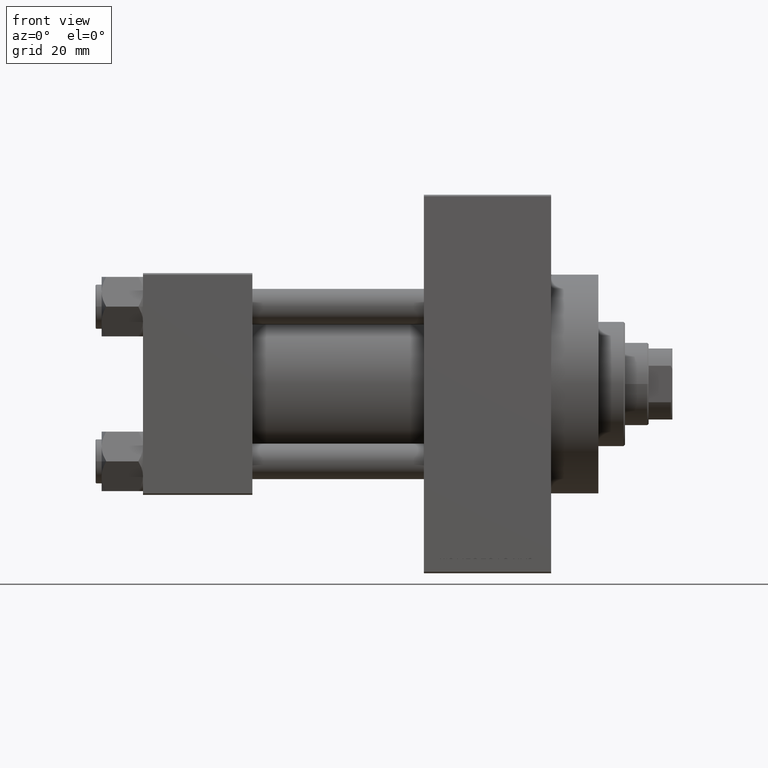
[diagram: clean part render]
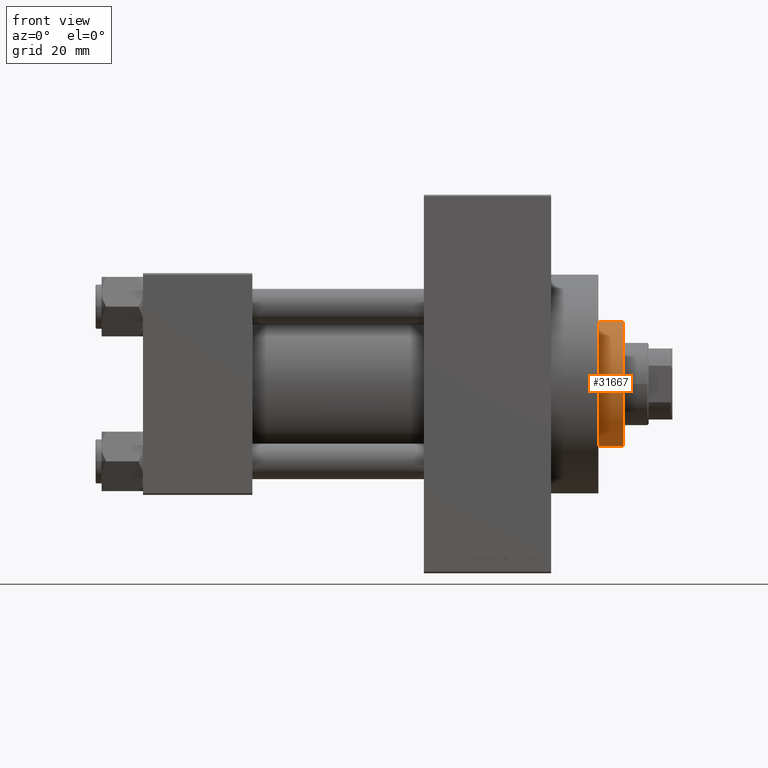
[diagram: same view with one face highlighted and labeled with its STEP entity id]
A machine part, front view. The second image highlights one B-rep face of the part: STEP entity #31667.
In plain terms, the highlighted cylindrical surface (partial cylindrical patch) has radius 21 mm, axis along (-1, 0, 0).
Its self-contained STEP definition (entity closure, byte-faithful):
#231 = CARTESIAN_POINT ( 'NONE',  ( 21.00000000000000000, 2.571758278209441661E-15, 43.25999999999999801 ) ) ;
#742 = DIRECTION ( 'NONE',  ( -0.000000000000000000, -0.000000000000000000, -1.000000000000000000 ) ) ;
#1249 = LINE ( 'NONE', #46734, #16766 ) ;
#3515 = EDGE_CURVE ( 'NONE', #29352, #16911, #34645, .T. ) ;
#3794 = AXIS2_PLACEMENT_3D ( 'NONE', #19649, #742, #34067 ) ;
#4236 = DIRECTION ( 'NONE',  ( 1.000000000000000000, 0.000000000000000000, 0.000000000000000000 ) ) ;
#6909 = AXIS2_PLACEMENT_3D ( 'NONE', #22886, #11231, #45007 ) ;
#8209 = VECTOR ( 'NONE', #14531, 1000.000000000000000 ) ;
#8729 = ORIENTED_EDGE ( 'NONE', *, *, #3515, .T. ) ;
#10975 = VERTEX_POINT ( 'NONE', #231 ) ;
#11231 = DIRECTION ( 'NONE',  ( 0.000000000000000000, 0.000000000000000000, -1.000000000000000000 ) ) ;
#14531 = DIRECTION ( 'NONE',  ( -0.000000000000000000, -0.000000000000000000, -1.000000000000000000 ) ) ;
#15214 = CARTESIAN_POINT ( 'NONE',  ( 21.00000000000000000, 2.571758278209441661E-15, 51.75999999999999801 ) ) ;
#15667 = CARTESIAN_POINT ( 'NONE',  ( 0.000000000000000000, 0.000000000000000000, 43.25999999999999801 ) ) ;
#16766 = VECTOR ( 'NONE', #32062, 1000.000000000000000 ) ;
#16911 = VERTEX_POINT ( 'NONE', #15214 ) ;
#17024 = EDGE_CURVE ( 'NONE', #29352, #17195, #1249, .T. ) ;
#17195 = VERTEX_POINT ( 'NONE', #38886 ) ;
#18376 = ORIENTED_EDGE ( 'NONE', *, *, #21976, .T. ) ;
#18914 = CYLINDRICAL_SURFACE ( 'NONE', #3794, 21.00000000000000000 ) ;
#19166 = FACE_OUTER_BOUND ( 'NONE', #44053, .T. ) ;
#19649 = CARTESIAN_POINT ( 'NONE',  ( 0.000000000000000000, 0.000000000000000000, 52.25999999999999801 ) ) ;
#21976 = EDGE_CURVE ( 'NONE', #10975, #17195, #32657, .T. ) ;
#22886 = CARTESIAN_POINT ( 'NONE',  ( 0.000000000000000000, 0.000000000000000000, 51.75999999999999801 ) ) ;
#27133 = AXIS2_PLACEMENT_3D ( 'NONE', #15667, #30813, #4236 ) ;
#29352 = VERTEX_POINT ( 'NONE', #37552 ) ;
#30643 = ORIENTED_EDGE ( 'NONE', *, *, #47394, .T. ) ;
#30813 = DIRECTION ( 'NONE',  ( 0.000000000000000000, 0.000000000000000000, 1.000000000000000000 ) ) ;
#31667 = ADVANCED_FACE ( 'NONE', ( #19166 ), #18914, .T. ) ;
#32062 = DIRECTION ( 'NONE',  ( -0.000000000000000000, -0.000000000000000000, -1.000000000000000000 ) ) ;
#32657 = CIRCLE ( 'NONE', #27133, 21.00000000000000000 ) ;
#34067 = DIRECTION ( 'NONE',  ( -1.000000000000000000, 0.000000000000000000, 0.000000000000000000 ) ) ;
#34645 = CIRCLE ( 'NONE', #6909, 21.00000000000000000 ) ;
#37552 = CARTESIAN_POINT ( 'NONE',  ( -21.00000000000000000, 0.000000000000000000, 51.75999999999999801 ) ) ;
#38886 = CARTESIAN_POINT ( 'NONE',  ( -21.00000000000000000, 0.000000000000000000, 43.25999999999999801 ) ) ;
#43397 = CARTESIAN_POINT ( 'NONE',  ( 21.00000000000000000, 2.571758278209441661E-15, 52.25999999999999801 ) ) ;
#43643 = LINE ( 'NONE', #43397, #8209 ) ;
#44053 = EDGE_LOOP ( 'NONE', ( #8729, #30643, #18376, #47826 ) ) ;
#45007 = DIRECTION ( 'NONE',  ( 1.000000000000000000, 0.000000000000000000, 0.000000000000000000 ) ) ;
#46734 = CARTESIAN_POINT ( 'NONE',  ( -21.00000000000000000, 0.000000000000000000, 52.25999999999999801 ) ) ;
#47394 = EDGE_CURVE ( 'NONE', #16911, #10975, #43643, .T. ) ;
#47826 = ORIENTED_EDGE ( 'NONE', *, *, #17024, .F. ) ;